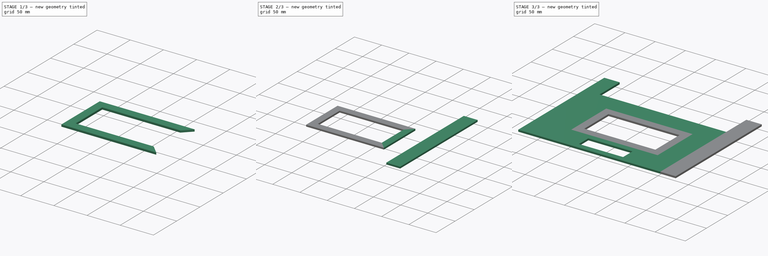
[diagram: build sequence overview — one tinted view per stage of 3, left to right]
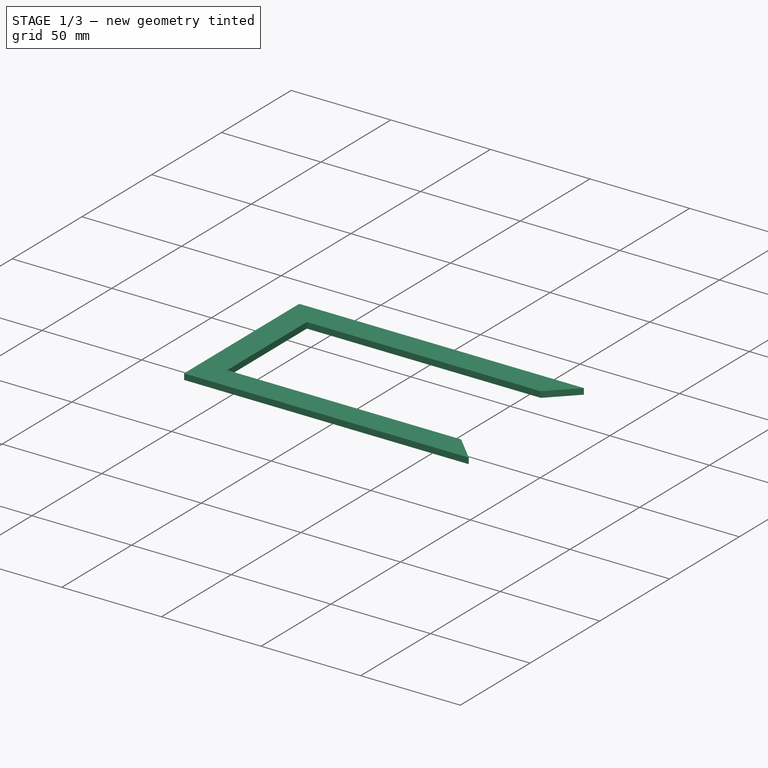
[diagram: stage 1 of 3 — iso view after this stage's code; geometry added in this stage tinted green]
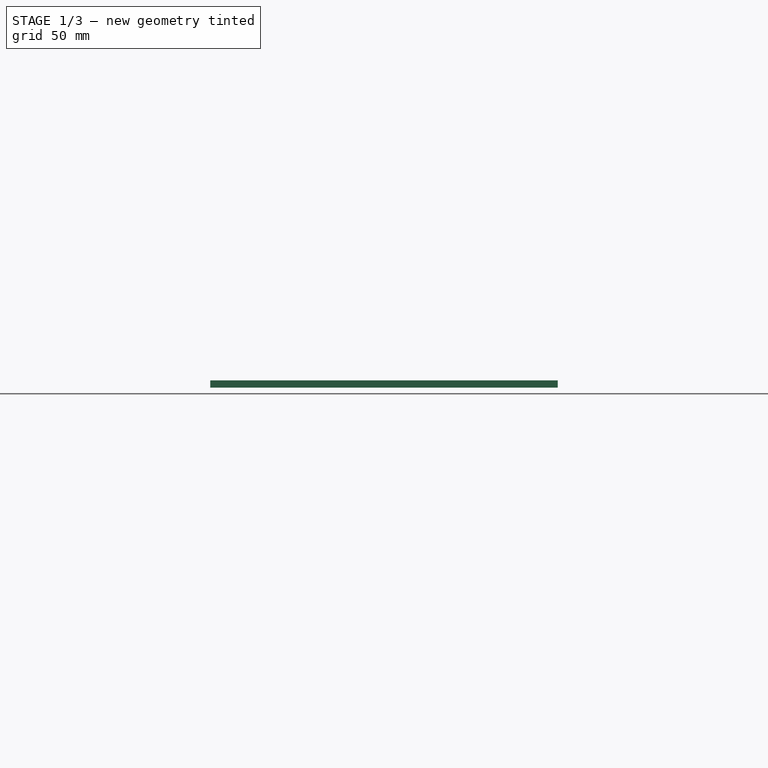
[diagram: stage 1 of 3 — front view after this stage's code; geometry added in this stage tinted green]
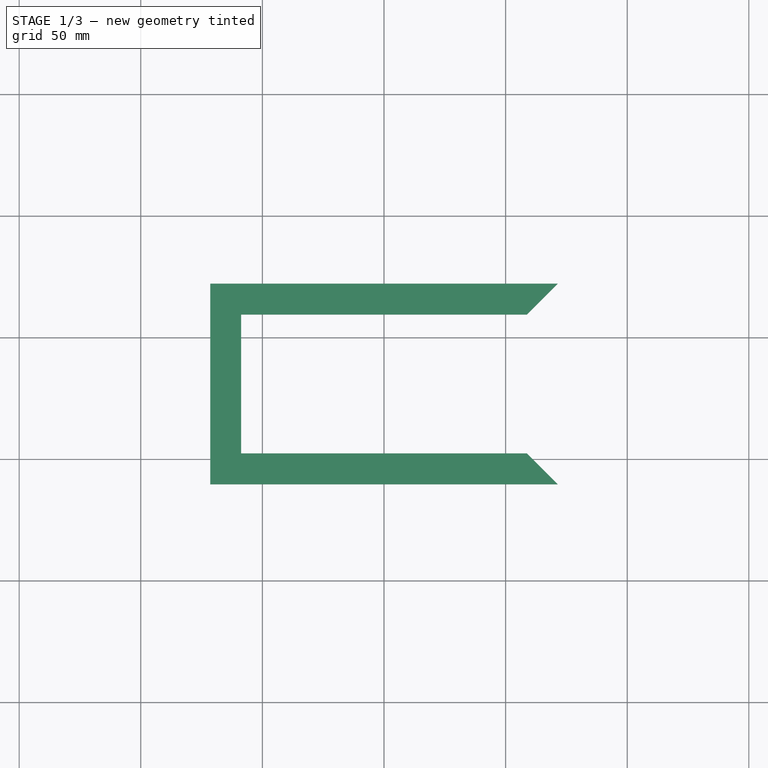
[diagram: stage 1 of 3 — top view after this stage's code; geometry added in this stage tinted green]
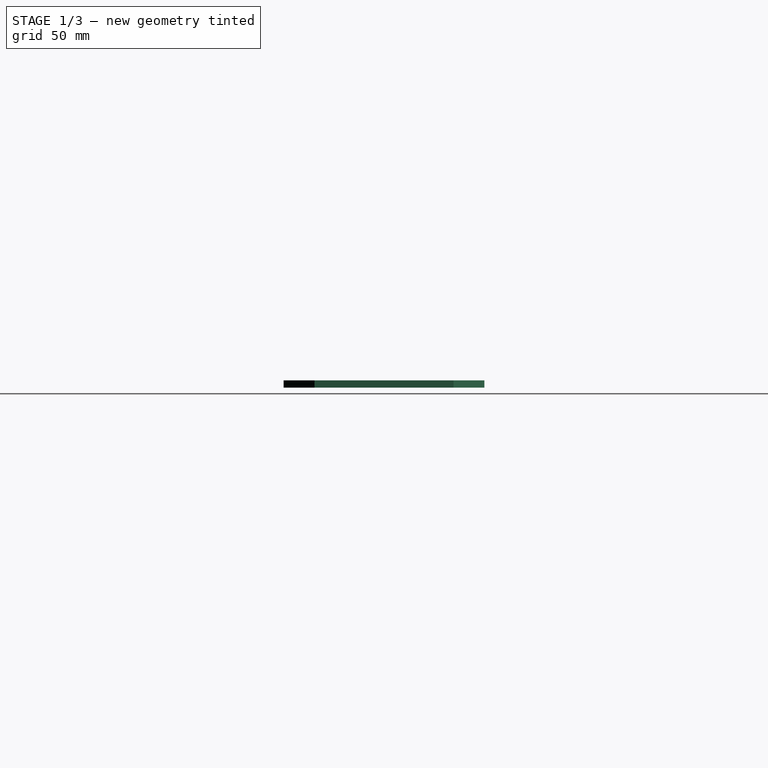
[diagram: stage 1 of 3 — right view after this stage's code; geometry added in this stage tinted green]
FCSTD DOCUMENT  (FreeCAD 0.22R38317 (Git))
Label: Cutout
License: All rights reserved
LicenseURL: https://en.wikipedia.org/wiki/All_rights_reserved
objects: TechDraw::DrawViewDimension×14, Sketcher::SketchObject×10, PartDesign::Body×9, PartDesign::Pad×8, TechDraw::DrawSVGTemplate×1, TechDraw::DrawProjGroupItem×1, TechDraw::DrawPage×1
note: 61 computed .brp shape members not serialized (recipe doc carries the construction recipe); baked Part::Feature solids carry a one-line shape summary decoded from their .brp

FEATURE [PartDesign::Body] Body006  label="inner-right"
  AllowCompound = false
  Group = -> [Sketch013,Pad005]
  Origin = -> Origin006
  Tip = -> Pad005
FEATURE [PartDesign::Pad] Pad006
  Direction = (0,0,1)
  Length = 3
  Length2 = 10
  Profile = -> Sketch012
  ReferenceAxis = -> Sketch012 [N_Axis]
  Refine = true
  Suppressed = false
  Type = 0
FEATURE [PartDesign::Body] Body007  label="inner-left"
  AllowCompound = false
  Group = -> [Sketch012,Pad006]
  Origin = -> Origin007
  Tip = -> Pad006
FEATURE [PartDesign::Pad] Pad007
  Direction = (0,0,1)
  Length = 3
  Length2 = 10
  Profile = -> Sketch011
  ReferenceAxis = -> Sketch011 [N_Axis]
  Refine = true
  Suppressed = false
  Type = 0
FEATURE [PartDesign::Body] Body008  label="inner-bottom"
  AllowCompound = false
  Group = -> [Sketch011,Pad007]
  Origin = -> Origin008
  Tip = -> Pad007
FEATURE [PartDesign::Pad] Pad008
  Direction = (0,0,1)
  Length = 3
  Length2 = 10
  Profile = -> Sketch010
  ReferenceAxis = -> Sketch010 [N_Axis]
  Refine = true
  Suppressed = false
  Type = 0
FEATURE [PartDesign::Body] Body009  label="inner-top"
  AllowCompound = false
  Group = -> [Sketch010,Pad008]
  Origin = -> Origin009
  Tip = -> Pad008
FEATURE [TechDraw::DrawSVGTemplate] Template
  EditableTexts = approval_person=B. Hecate; creator=A. Nemesis; date_of_issue=7/23/24; document_type=Assembly Drawing; general_tolerances=ISO 2768-m; identification_number=DN; language_code=EN; part_material=Stainless steel Mat.No. 1.4301; revision_index=AAA; sheet_number=1 / 1; sheet_scale=1 : 1; title=Cutout
  Height = 420
  Orientation = 1
  Template = /snap/freecad/1085/usr/share/Mod/TechDraw/Templates/A2_Landscape_ISO5457_minimal.svg
  Width = 594
FEATURE [TechDraw::DrawProjGroupItem] View
  CoarseView = false
  Direction = (0,0,1)
  Focus = 100
  HardHidden = false
  IsoCount = 0
  IsoHidden = false
  IsoVisible = false
  LockPosition = false
  Perspective = false
  Rotation = 0
  RotationVector = (1,0,0)
  ScaleType = 0
  ScrubCount = 1
  SeamHidden = false
  SeamVisible = false
  SmoothHidden = false
  SmoothVisible = true
  Source = -> [Body001,Body009,Body008,Body007,Body006,Body004,Body005,Body002]
  Type = 0
  X = 205.236
  XDirection = (1,0,0)
  Y = 269.663
FEATURE [TechDraw::DrawViewDimension] Dimension
  AngleOverride = false
  Arbitrary = false
  ArbitraryTolerances = false
  BoxCorners = (2) [(-130.175,-101.6,0),(130.175,101.6,0)]
  EqualTolerance = true
  ExtensionAngle = 0
  FormatSpec = %.2w
  FormatSpecOverTolerance = %+.2w
  FormatSpecUnderTolerance = %+.2w
  Inverted = false
  LineAngle = 0
  LockPosition = false
  MeasureType = 1
  OverTolerance = 0
  References2D = -> [View]
  Rotation = 0
  ScaleType = 0
  TheoreticalExact = false
  Type = 1
  UnderTolerance = 0
  X = 0
  Y = -136.637
FEATURE [TechDraw::DrawViewDimension] Dimension001
  AngleOverride = false
  Arbitrary = false
  ArbitraryTolerances = false
  BoxCorners = (2) [(-130.175,-101.6,0),(130.175,101.6,0)]
  EqualTolerance = true
  ExtensionAngle = 0
  FormatSpec = %.2w
  FormatSpecOverTolerance = %+.2w
  FormatSpecUnderTolerance = %+.2w
  Inverted = false
  LineAngle = 0
  LockPosition = false
  MeasureType = 1
  OverTolerance = 0
  References2D = -> [View]
  Rotation = 0
  ScaleType = 0
  TheoreticalExact = false
  Type = 1
  UnderTolerance = 0
  X = 0
  Y = 75.108
FEATURE [TechDraw::DrawViewDimension] Dimension002
  AngleOverride = false
  Arbitrary = false
  ArbitraryTolerances = false
  BoxCorners = (2) [(-130.175,-101.6,0),(130.175,101.6,0)]
  EqualTolerance = true
  ExtensionAngle = 0
  FormatSpec = %.2w
  FormatSpecOverTolerance = %+.2w
  FormatSpecUnderTolerance = %+.2w
  Inverted = false
  LineAngle = 0
  LockPosition = false
  MeasureType = 1
  OverTolerance = 0
  References2D = -> [View]
  Rotation = 0
  ScaleType = 0
  TheoreticalExact = false
  Type = 2
  UnderTolerance = 0
  X = 163.537
  Y = -11.5795
FEATURE [TechDraw::DrawViewDimension] Dimension003
  AngleOverride = false
  Arbitrary = false
  ArbitraryTolerances = false
  BoxCorners = (2) [(-130.175,-101.6,0),(130.175,101.6,0)]
  EqualTolerance = true
  ExtensionAngle = 0
  FormatSpec = %.4w
  FormatSpecOverTolerance = %+.2w
  FormatSpecUnderTolerance = %+.2w
  Inverted = false
  LineAngle = 0
  LockPosition = false
  MeasureType = 1
  OverTolerance = 0
  References2D = -> [View]
  Rotation = 0
  ScaleType = 0
  TheoreticalExact = false
  Type = 1
  UnderTolerance = 0
  X = 0
  Y = -81.2138
FEATURE [TechDraw::DrawViewDimension] Dimension004
  AngleOverride = false
  Arbitrary = false
  ArbitraryTolerances = false
  BoxCorners = (2) [(-130.175,-101.6,0),(130.175,101.6,0)]
  EqualTolerance = true
  ExtensionAngle = 0
  FormatSpec = %.4w
  FormatSpecOverTolerance = %+.2w
  FormatSpecUnderTolerance = %+.2w
  Inverted = false
  LineAngle = 0
  LockPosition = false
  MeasureType = 1
  OverTolerance = 0
  References2D = -> [View]
  Rotation = 0
  ScaleType = 0
  TheoreticalExact = false
  Type = 2
  UnderTolerance = 0
  X = 52.8678
  Y = -80.9625
FEATURE [TechDraw::DrawViewDimension] Dimension005
  AngleOverride = false
  Arbitrary = false
  ArbitraryTolerances = false
  BoxCorners = (2) [(-130.175,-101.6,0),(130.175,101.6,0)]
  EqualTolerance = true
  ExtensionAngle = 0
  FormatSpec = %.4w
  FormatSpecOverTolerance = %+.2w
  FormatSpecUnderTolerance = %+.2w
  Inverted = false
  LineAngle = 0
  LockPosition = false
  MeasureType = 1
  OverTolerance = 0
  References2D = -> [View]
  Rotation = 0
  ScaleType = 0
  TheoreticalExact = false
  Type = 2
  UnderTolerance = 0
  X = -0.89738
  Y = 42.9006
FEATURE [TechDraw::DrawViewDimension] Dimension006
  AngleOverride = false
  Arbitrary = false
  ArbitraryTolerances = false
  BoxCorners = (2) [(-130.175,-101.6,0),(130.175,101.6,0)]
  EqualTolerance = true
  ExtensionAngle = 0
  FormatSpec = %.4w
  FormatSpecOverTolerance = %+.2w
  FormatSpecUnderTolerance = %+.2w
  Inverted = false
  LineAngle = 0
  LockPosition = false
  MeasureType = 1
  OverTolerance = 0
  References2D = -> [View]
  Rotation = 0
  ScaleType = 0
  TheoreticalExact = false
  Type = 2
  UnderTolerance = 0
  X = -154.537
  Y = 26.9875
FEATURE [TechDraw::DrawViewDimension] Dimension007
  AngleOverride = false
  Arbitrary = false
  ArbitraryTolerances = false
  BoxCorners = (2) [(-130.175,-101.6,0),(130.175,101.6,0)]
  EqualTolerance = true
  ExtensionAngle = 0
  FormatSpec = %.2w
  FormatSpecOverTolerance = %+.2w
  FormatSpecUnderTolerance = %+.2w
  Inverted = false
  LineAngle = 0
  LockPosition = false
  MeasureType = 1
  OverTolerance = 0
  References2D = -> [View]
  Rotation = 0
  ScaleType = 0
  TheoreticalExact = false
  Type = 2
  UnderTolerance = 0
  X = 92.4737
  Y = -19.05
FEATURE [TechDraw::DrawViewDimension] Dimension008
  AngleOverride = false
  Arbitrary = false
  ArbitraryTolerances = false
  BoxCorners = (2) [(-130.175,-101.6,0),(130.175,101.6,0)]
  EqualTolerance = true
  ExtensionAngle = 0
  FormatSpec = %.2w
  FormatSpecOverTolerance = %+.2w
  FormatSpecUnderTolerance = %+.2w
  Inverted = false
  LineAngle = 0
  LockPosition = false
  MeasureType = 1
  OverTolerance = 0
  References2D = -> [View]
  Rotation = 0
  ScaleType = 0
  TheoreticalExact = false
  Type = 2
  UnderTolerance = 0
  X = 78.3422
  Y = -19.05
FEATURE [TechDraw::DrawViewDimension] Dimension009
  AngleOverride = false
  Arbitrary = false
  ArbitraryTolerances = false
  BoxCorners = (2) [(-130.175,-101.6,0),(130.175,101.6,0)]
  EqualTolerance = true
  ExtensionAngle = 0
  FormatSpec = %.4w
  FormatSpecOverTolerance = %+.2w
  FormatSpecUnderTolerance = %+.2w
  Inverted = false
  LineAngle = 0
  LockPosition = false
  MeasureType = 1
  OverTolerance = 0
  References2D = -> [View]
  Rotation = 0
  ScaleType = 0
  TheoreticalExact = false
  Type = 1
  UnderTolerance = 0
  X = 0
  Y = -51.8442
FEATURE [TechDraw::DrawViewDimension] Dimension010
  AngleOverride = false
  Arbitrary = false
  ArbitraryTolerances = false
  BoxCorners = (2) [(-130.175,-101.6,0),(130.175,101.6,0)]
  EqualTolerance = true
  ExtensionAngle = 0
  FormatSpec = %.4w
  FormatSpecOverTolerance = %+.2w
  FormatSpecUnderTolerance = %+.2w
  Inverted = false
  LineAngle = 0
  LockPosition = false
  MeasureType = 1
  OverTolerance = 0
  References2D = -> [View]
  Rotation = 0
  ScaleType = 0
  TheoreticalExact = false
  Type = 1
  UnderTolerance = 0
  X = 0
  Y = -63.6868
FEATURE [TechDraw::DrawViewDimension] Dimension011
  AngleOverride = false
  Arbitrary = false
  ArbitraryTolerances = false
  BoxCorners = (2) [(-130.175,-101.6,0),(130.175,101.6,0)]
  EqualTolerance = true
  ExtensionAngle = 0
  FormatSpec = %.2w
  FormatSpecOverTolerance = %+.2w
  FormatSpecUnderTolerance = %+.2w
  Inverted = false
  LineAngle = 0
  LockPosition = false
  MeasureType = 1
  OverTolerance = 0
  References2D = -> [View]
  Rotation = 0
  ScaleType = 0
  TheoreticalExact = false
  Type = 1
  UnderTolerance = 0
  X = -117.475
  Y = 116.202
FEATURE [TechDraw::DrawViewDimension] Dimension012
  AngleOverride = false
  Arbitrary = false
  ArbitraryTolerances = false
  BoxCorners = (2) [(-130.175,-101.6,0),(130.175,101.6,0)]
  EqualTolerance = true
  ExtensionAngle = 0
  FormatSpec = %.2w
  FormatSpecOverTolerance = %+.2w
  FormatSpecUnderTolerance = %+.2w
  Inverted = false
  LineAngle = 0
  LockPosition = false
  MeasureType = 1
  OverTolerance = 0
  References2D = -> [View]
  Rotation = 0
  ScaleType = 0
  TheoreticalExact = false
  Type = 1
  UnderTolerance = 0
  X = 117.475
  Y = 116.202
FEATURE [TechDraw::DrawViewDimension] Dimension013
  AngleOverride = false
  Arbitrary = false
  ArbitraryTolerances = false
  BoxCorners = (2) [(-130.175,-101.6,0),(130.175,101.6,0)]
  EqualTolerance = true
  ExtensionAngle = 0
  FormatSpec = %.4w
  FormatSpecOverTolerance = %+.2w
  FormatSpecUnderTolerance = %+.2w
  Inverted = false
  LineAngle = 0
  LockPosition = false
  MeasureType = 1
  OverTolerance = 0
  References2D = -> [View]
  Rotation = 0
  ScaleType = 0
  TheoreticalExact = false
  Type = 2
  UnderTolerance = 0
  X = -154.537
  Y = -96.8375
FEATURE [TechDraw::DrawPage] Page
  KeepUpdated = true
  NextBalloonIndex = 1
  ProjectionType = 0
  Template = -> Template
  Views = -> [View,Dimension,Dimension001,Dimension002,Dimension003,Dimension004,Dimension005,Dimension006,Dimension007,Dimension008,Dimension009,Dimension010,Dimension011,Dimension012,Dimension013]
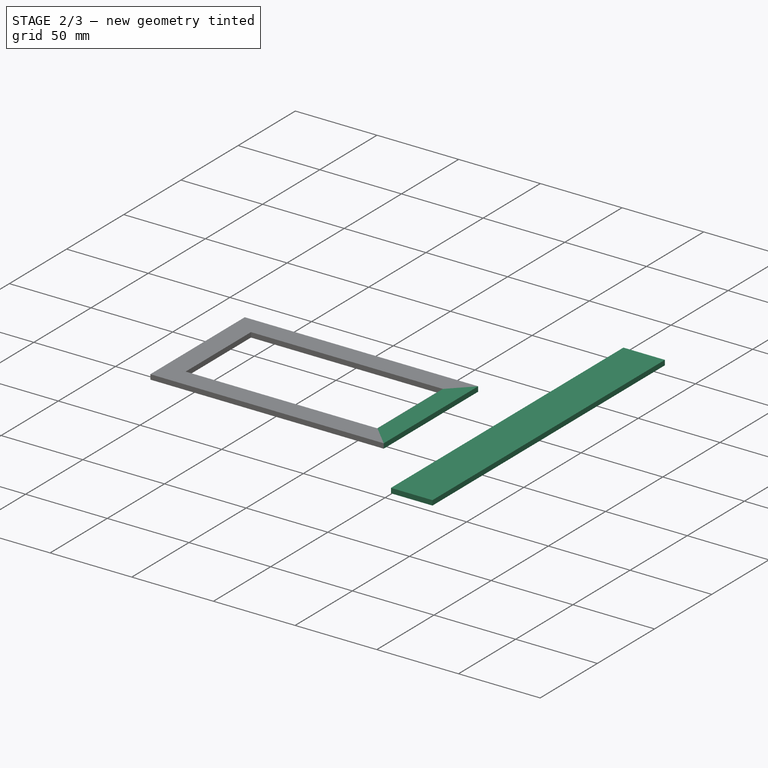
[diagram: stage 2 of 3 — iso view after this stage's code; geometry added in this stage tinted green]
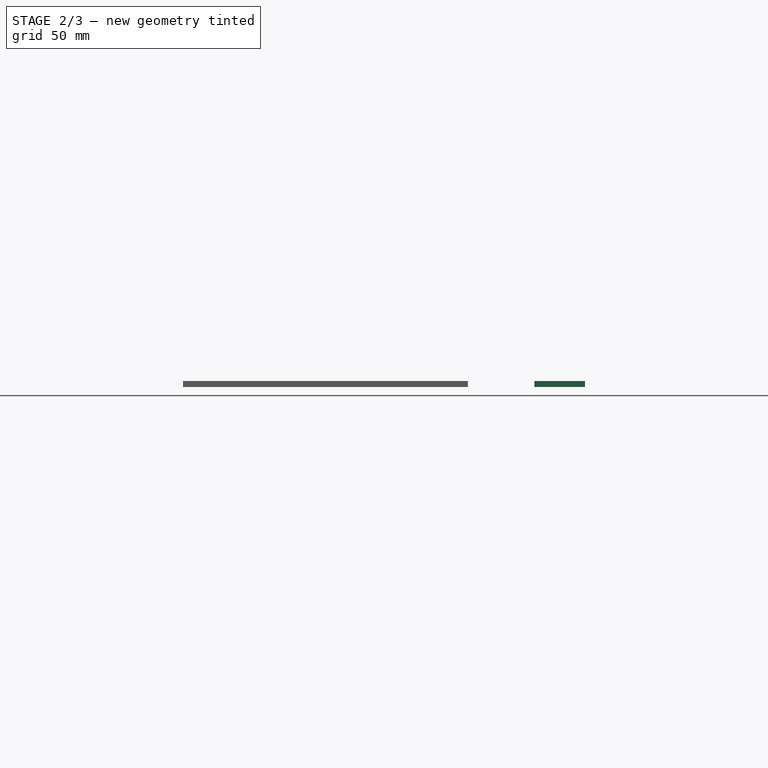
[diagram: stage 2 of 3 — front view after this stage's code; geometry added in this stage tinted green]
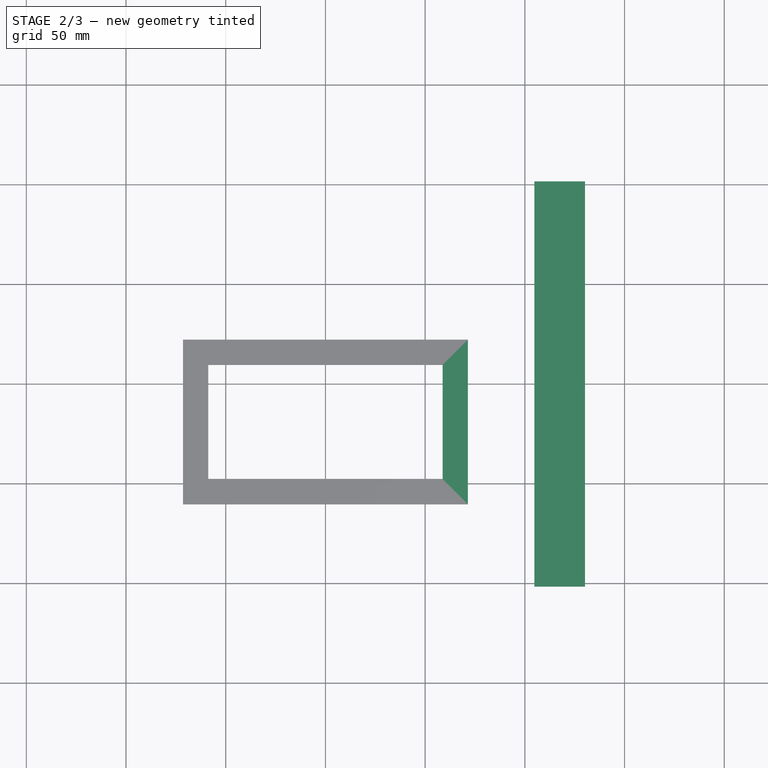
[diagram: stage 2 of 3 — top view after this stage's code; geometry added in this stage tinted green]
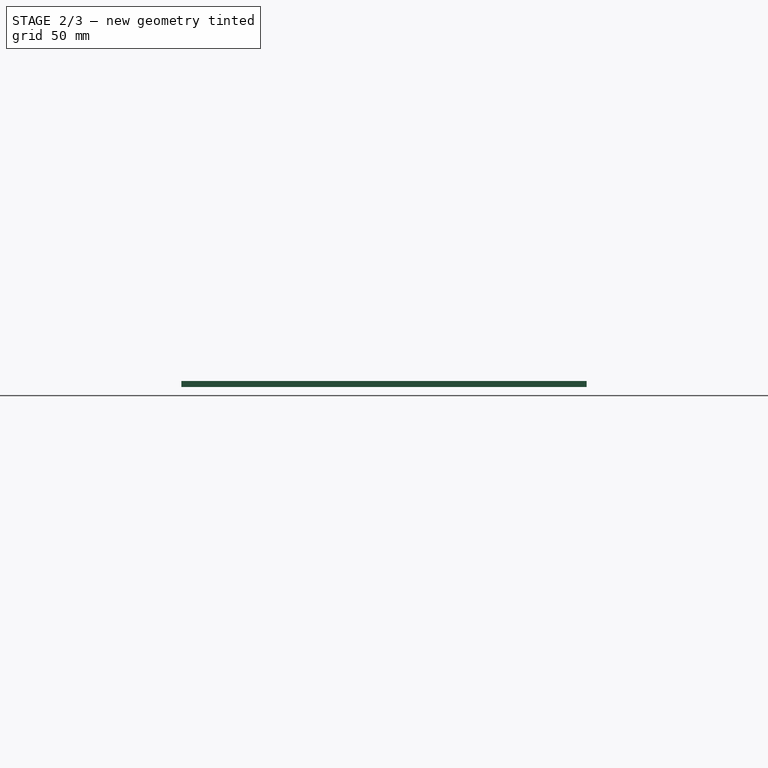
[diagram: stage 2 of 3 — right view after this stage's code; geometry added in this stage tinted green]
FEATURE [Sketcher::SketchObject] Sketch008
  AttachmentSupport = -> [XY_Plane005]
  FullyConstrained = true
  MapMode = 5
  sketch-geometry (23):
    g0: LineSegment StartX=130.175 StartY=-101.6 StartZ=0 EndX=130.175 EndY=101.6 EndZ=0
    g1: LineSegment StartX=-130.175 StartY=-101.6 StartZ=0 EndX=-130.175 EndY=101.6 EndZ=0
    g2: LineSegment StartX=104.775 StartY=101.6 StartZ=0 EndX=130.175 EndY=101.6 EndZ=0
    g3: LineSegment StartX=-130.175 StartY=101.6 StartZ=0 EndX=-104.775 EndY=101.6 EndZ=0
    g4: LineSegment StartX=-130.175 StartY=-101.6 StartZ=0 EndX=-104.775 EndY=-101.6 EndZ=0
    g5: LineSegment StartX=-104.775 StartY=-101.6 StartZ=0 EndX=104.775 EndY=-101.6 EndZ=0
    g6: LineSegment StartX=104.775 StartY=-101.6 StartZ=0 EndX=130.175 EndY=-101.6 EndZ=0
    g7: LineSegment StartX=-104.775 StartY=53.975 StartZ=0 EndX=104.775 EndY=53.975 EndZ=0
    g8: LineSegment StartX=-104.775 StartY=31.75 StartZ=0 EndX=104.775 EndY=31.75 EndZ=0
    g9: LineSegment StartX=-71.4375 StartY=22.225 StartZ=0 EndX=-71.4375 EndY=-60.325 EndZ=0
    g10: LineSegment StartX=-71.4375 StartY=-60.325 StartZ=0 EndX=71.4375 EndY=-60.325 EndZ=0
    g11: LineSegment StartX=71.4375 StartY=-60.325 StartZ=0 EndX=71.4375 EndY=22.225 EndZ=0
    g12: LineSegment StartX=71.4375 StartY=22.225 StartZ=0 EndX=-71.4375 EndY=22.225 EndZ=0
    g13: LineSegment StartX=-36.5125 StartY=-69.85 StartZ=0 EndX=-36.5125 EndY=-92.075 EndZ=0
    g14: LineSegment StartX=-36.5125 StartY=-92.075 StartZ=0 EndX=36.5125 EndY=-92.075 EndZ=0
    g15: LineSegment StartX=36.5125 StartY=-92.075 StartZ=0 EndX=36.5125 EndY=-69.85 EndZ=0
    g16: LineSegment StartX=36.5125 StartY=-69.85 StartZ=0 EndX=-36.5125 EndY=-69.85 EndZ=0
    g17: LineSegment StartX=104.775 StartY=-101.6 StartZ=0 EndX=104.775 EndY=101.6 EndZ=0
    g18: LineSegment StartX=-104.775 StartY=-101.6 StartZ=0 EndX=-104.775 EndY=101.6 EndZ=0
    g19: LineSegment StartX=-58.7375 StartY=9.525 StartZ=0 EndX=-58.7375 EndY=-47.625 EndZ=0
    g20: LineSegment StartX=-58.7375 StartY=-47.625 StartZ=0 EndX=58.7375 EndY=-47.625 EndZ=0
    g21: LineSegment StartX=58.7375 StartY=-47.625 StartZ=0 EndX=58.7375 EndY=9.525 EndZ=0
    g22: LineSegment StartX=58.7375 StartY=9.525 StartZ=0 EndX=-58.7375 EndY=9.525 EndZ=0
  constraints (64):
    c: Distance(g0) = 203.2
    c: Vertical(g0)
    c: Distance(g1) = 203.2
    c: Vertical(g1)
    c: Distance(g1,g0) = 260.35
    c: Symmetric(g1,g0,g-2)
    c: Coincident(g2,g0)
    c: Horizontal(g2)
    c: DistanceX(g2,g2) = 25.4
    c: Coincident(g3,g1)
    c: DistanceX(g3,g3) = 25.4
    c: Horizontal(g3)
    c: DistanceY(g0,g-1) = 101.6
    c: Coincident(g4,g1)
    c: Coincident(g6,g0)
    c: DistanceY(g7,g3) = 47.625
    c: DistanceY(g8,g7) = 22.225
    c: Coincident(g9,g10)
    c: Coincident(g10,g11)
    c: Coincident(g11,g12)
    c: Coincident(g12,g9)
    c: Vertical(g9)
    c: Vertical(g11)
    c: Horizontal(g10)
    c: Coincident(g13,g14)
    c: Coincident(g14,g15)
    c: Coincident(g15,g16)
    c: Coincident(g16,g13)
    c: Vertical(g13)
    c: Vertical(g15)
    c: Horizontal(g14)
    c: Symmetric(g9,g11,g-2)
    c: Symmetric(g13,g15,g-2)
    c: DistanceX(g12,g12) = 142.875
    c: DistanceY(g9,g8) = 9.525
    c: DistanceY(g9,g9) = 82.55
    c: DistanceY(g13,g9) = 9.525
    c: DistanceX(g16,g16) = 73.025
    c: DistanceY(g13,g13) = 22.225
    c: Coincident(g17,g5)
    c: Coincident(g17,g2)
    c: Vertical(g17)
    c: Coincident(g18,g4)
    c: Coincident(g18,g3)
    c: Vertical(g18)
    c: DistanceY(g18,g18) = 203.2
    c: Symmetric(g7,g7,g-2)
    c: DistanceX(g7,g7) = 209.55
    c: Equal(g8,g7)
    c: Symmetric(g8,g8,g-2)
    c: Coincident(g5,g6)
    c: Horizontal(g5)
    c: Coincident(g5,g4)
    c: Coincident(g19,g20)
    c: Coincident(g20,g21)
    c: Coincident(g21,g22)
    c: Coincident(g22,g19)
    c: Vertical(g19)
    c: Vertical(g21)
    c: Horizontal(g20)
    c: DistanceX(g9,g19) = 12.7
    c: Symmetric(g19,g21,g-2)
    c: DistanceY(g19,g9) = 12.7
    c: DistanceY(g9,g19) = 12.7
FEATURE [PartDesign::Body] Body004  label="side-L"
  AllowCompound = false
  Group = -> [Sketch007,Pad003,Sketch008]
  Origin = -> Origin004
  Tip = -> Pad003
FEATURE [Sketcher::SketchObject] Sketch009
  AttachmentSupport = -> [XY_Plane006]
  FullyConstrained = true
  MapMode = 5
  sketch-geometry (4):
    g0: LineSegment StartX=130.175 StartY=-101.6 StartZ=0 EndX=130.175 EndY=101.6 EndZ=0
    g1: LineSegment StartX=104.775 StartY=101.6 StartZ=0 EndX=130.175 EndY=101.6 EndZ=0
    g2: LineSegment StartX=104.775 StartY=-101.6 StartZ=0 EndX=130.175 EndY=-101.6 EndZ=0
    g3: LineSegment StartX=104.775 StartY=-101.6 StartZ=0 EndX=104.775 EndY=101.6 EndZ=0
  constraints (12):
    c: Distance(g0) = 203.2
    c: Vertical(g0)
    c: Coincident(g1,g0)
    c: Horizontal(g1)
    c: DistanceX(g1,g1) = 25.4
    c: DistanceY(g0,g-1) = 101.6
    c: Coincident(g2,g0)
    c: Coincident(g3,g1)
    c: Vertical(g3)
    c: DistanceX(g-1,g1) = 104.775
    c: Equal(g3,g0)
    c: Coincident(g2,g3)
FEATURE [PartDesign::Pad] Pad004
  Direction = (0,0,1)
  Length = 3
  Length2 = 10
  Profile = -> Sketch009
  ReferenceAxis = -> Sketch009 [N_Axis]
  Refine = true
  Suppressed = false
  Type = 0
FEATURE [PartDesign::Body] Body005  label="side-R"
  AllowCompound = false
  Group = -> [Sketch009,Pad004]
  Origin = -> Origin005
  Tip = -> Pad004
FEATURE [Sketcher::SketchObject] Sketch010
  AttachmentSupport = -> [XY_Plane013]
  FullyConstrained = true
  MapMode = 5
  sketch-geometry (4):
    g0: LineSegment StartX=-58.7375 StartY=9.525 StartZ=0 EndX=58.7375 EndY=9.525 EndZ=0
    g1: LineSegment StartX=58.7375 StartY=9.525 StartZ=0 EndX=71.4375 EndY=22.225 EndZ=0
    g2: LineSegment StartX=71.4375 StartY=22.225 StartZ=0 EndX=-71.4375 EndY=22.225 EndZ=0
    g3: LineSegment StartX=-71.4375 StartY=22.225 StartZ=0 EndX=-58.7375 EndY=9.525 EndZ=0
  constraints (10):
    c: Coincident(g1,g0)
    c: Coincident(g2,g1)
    c: Coincident(g3,g2)
    c: Coincident(g3,g0)
    c: Symmetric(g2,g1,g-2)
    c: Symmetric(g0,g0,g-2)
    c: DistanceX(g2,g1) = 142.875
    c: DistanceY(g0,g2) = 12.7
    c: DistanceY(g-1,g0) = 9.525
    c: DistanceX(g0,g0) = 117.475
FEATURE [Sketcher::SketchObject] Sketch011
  AttachmentSupport = -> [XY_Plane012]
  FullyConstrained = true
  MapMode = 5
  sketch-geometry (4):
    g0: LineSegment StartX=-71.4375 StartY=-60.325 StartZ=0 EndX=-58.7375 EndY=-47.625 EndZ=0
    g1: LineSegment StartX=-58.7375 StartY=-47.625 StartZ=0 EndX=58.7375 EndY=-47.625 EndZ=0
    g2: LineSegment StartX=58.7375 StartY=-47.625 StartZ=0 EndX=71.4375 EndY=-60.325 EndZ=0
    g3: LineSegment StartX=71.4375 StartY=-60.325 StartZ=0 EndX=-71.4375 EndY=-60.325 EndZ=0
  constraints (10):
    c: Coincident(g1,g0)
    c: Coincident(g2,g1)
    c: Coincident(g3,g2)
    c: Coincident(g3,g0)
    c: Symmetric(g0,g1,g-2)
    c: DistanceY(g0,g0) = 12.7
    c: DistanceY(g0,g-1) = 47.625
    c: DistanceX(g0,g1) = 117.475
    c: Symmetric(g0,g2,g-2)
    c: DistanceX(g0,g2) = 142.875
FEATURE [Sketcher::SketchObject] Sketch012
  AttachmentSupport = -> [XY_Plane011]
  FullyConstrained = true
  MapMode = 5
  sketch-geometry (4):
    g0: LineSegment StartX=-71.4375 StartY=-60.325 StartZ=0 EndX=-58.7375 EndY=-47.625 EndZ=0
    g1: LineSegment StartX=-58.7375 StartY=-47.625 StartZ=0 EndX=-58.7375 EndY=9.525 EndZ=0
    g2: LineSegment StartX=-58.7375 StartY=9.525 StartZ=0 EndX=-71.4375 EndY=22.225 EndZ=0
    g3: LineSegment StartX=-71.4375 StartY=22.225 StartZ=0 EndX=-71.4375 EndY=-60.325 EndZ=0
  constraints (12):
    c: Coincident(g1,g0)
    c: Vertical(g1)
    c: Coincident(g2,g1)
    c: Coincident(g3,g2)
    c: Coincident(g3,g0)
    c: Vertical(g3)
    c: DistanceY(g1,g1) = 57.15
    c: DistanceY(g3,g3) = 82.55
    c: DistanceX(g2,g2) = 12.7
    c: DistanceX(g1,g-1) = 58.7375
    c: DistanceY(g-1,g1) = 9.525
    c: DistanceY(g1,g2) = 12.7
FEATURE [Sketcher::SketchObject] Sketch013
  AttachmentSupport = -> [XY_Plane010]
  FullyConstrained = true
  MapMode = 5
  sketch-geometry (4):
    g0: LineSegment StartX=58.7375 StartY=9.525 StartZ=0 EndX=71.4375 EndY=22.225 EndZ=0
    g1: LineSegment StartX=71.4375 StartY=22.225 StartZ=0 EndX=71.4375 EndY=-60.325 EndZ=0
    g2: LineSegment StartX=71.4375 StartY=-60.325 StartZ=0 EndX=58.7375 EndY=-47.625 EndZ=0
    g3: LineSegment StartX=58.7375 StartY=-47.625 StartZ=0 EndX=58.7375 EndY=9.525 EndZ=0
  constraints (12):
    c: Coincident(g1,g0)
    c: Vertical(g1)
    c: Coincident(g2,g1)
    c: Coincident(g3,g2)
    c: Coincident(g3,g0)
    c: Vertical(g3)
    c: DistanceX(g-1,g0) = 58.7375
    c: DistanceX(g0,g0) = 12.7
    c: DistanceY(g1,g1) = 82.55
    c: DistanceY(g3,g3) = 57.15
    c: DistanceY(g0,g0) = 12.7
    c: DistanceY(g-1,g0) = 9.525
FEATURE [PartDesign::Pad] Pad005
  Direction = (0,0,1)
  Length = 3
  Length2 = 10
  Profile = -> Sketch013
  ReferenceAxis = -> Sketch013 [N_Axis]
  Refine = true
  Suppressed = false
  Type = 0
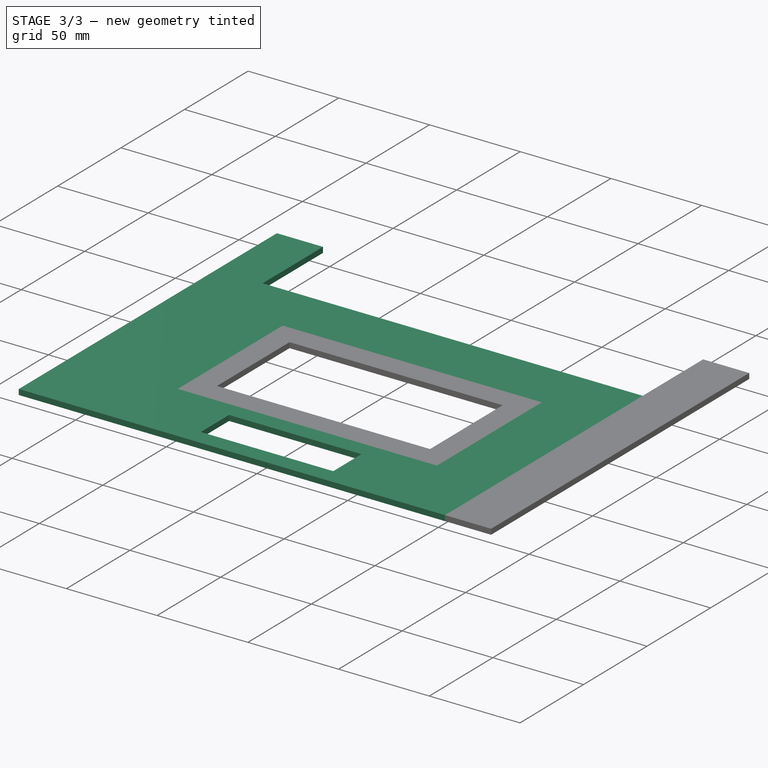
[diagram: stage 3 of 3 — iso view after this stage's code; geometry added in this stage tinted green]
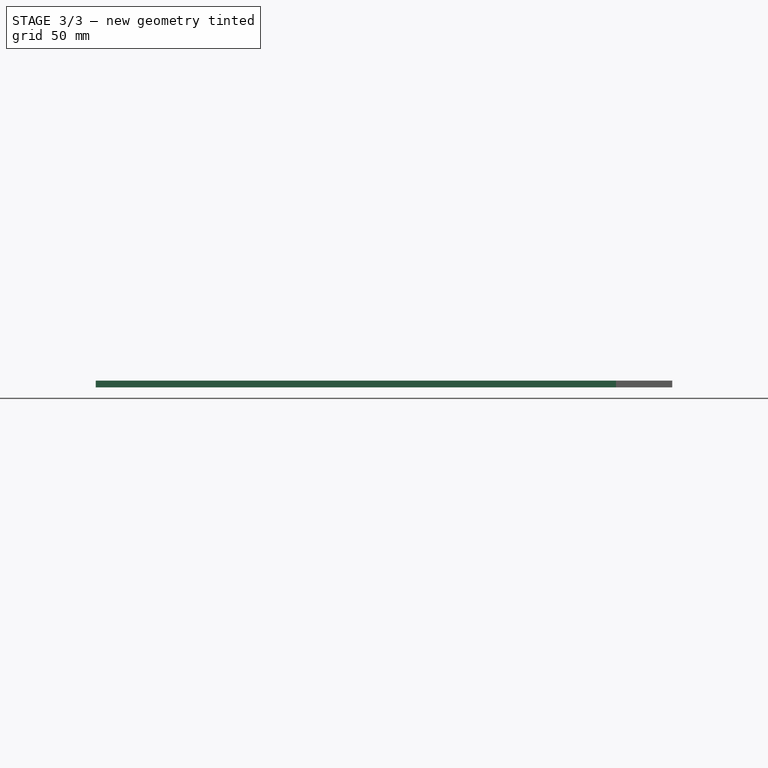
[diagram: stage 3 of 3 — front view after this stage's code; geometry added in this stage tinted green]
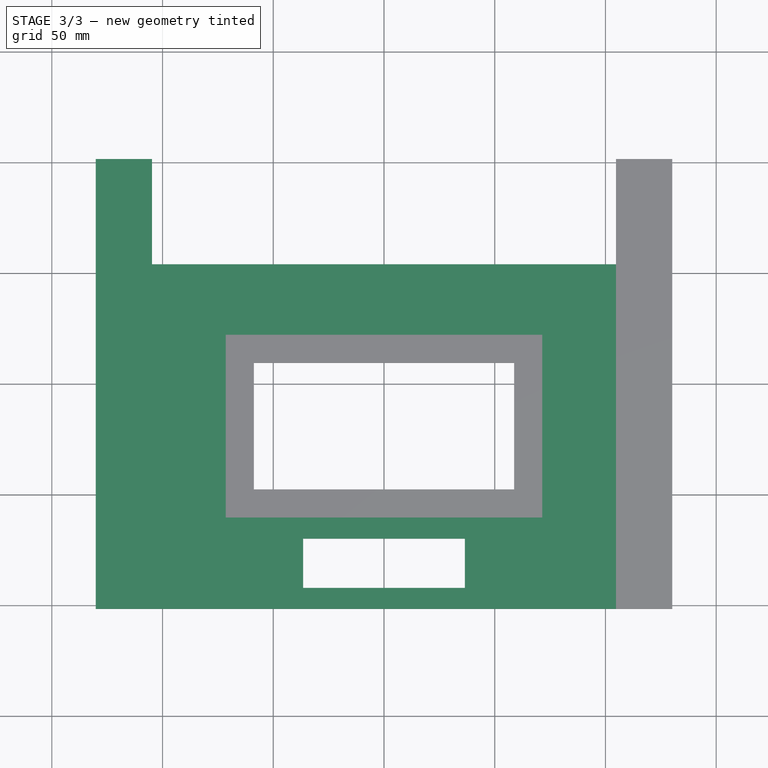
[diagram: stage 3 of 3 — top view after this stage's code; geometry added in this stage tinted green]
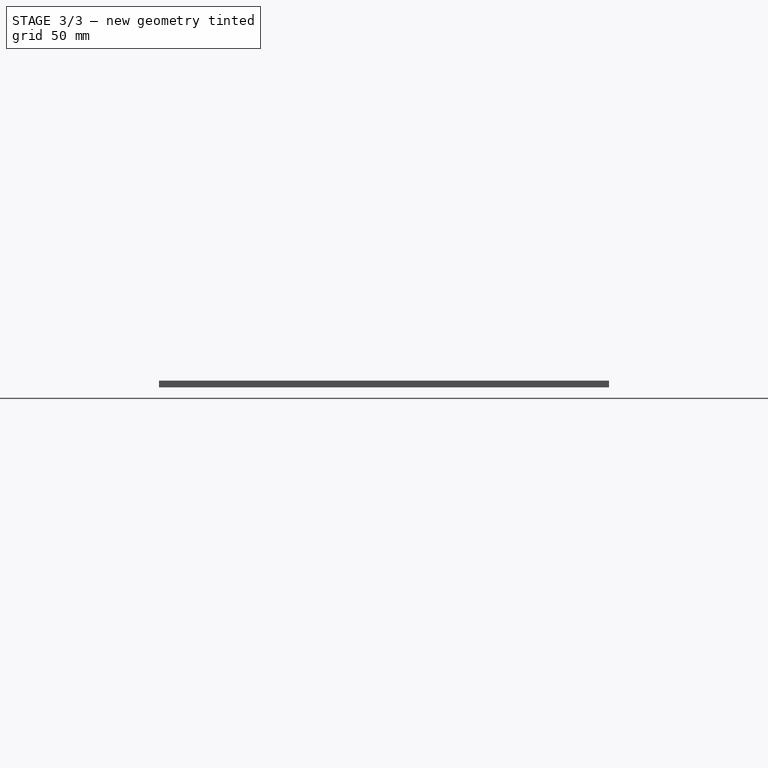
[diagram: stage 3 of 3 — right view after this stage's code; geometry added in this stage tinted green]
FEATURE [Sketcher::SketchObject] Sketch
  AttachmentSupport = -> [XY_Plane]
  FullyConstrained = true
  MapMode = 5
  sketch-geometry (23):
    g0: LineSegment StartX=130.175 StartY=-101.6 StartZ=0 EndX=130.175 EndY=101.6 EndZ=0
    g1: LineSegment StartX=-130.175 StartY=-101.6 StartZ=0 EndX=-130.175 EndY=101.6 EndZ=0
    g2: LineSegment StartX=104.775 StartY=101.6 StartZ=0 EndX=130.175 EndY=101.6 EndZ=0
    g3: LineSegment StartX=-130.175 StartY=101.6 StartZ=0 EndX=-104.775 EndY=101.6 EndZ=0
    g4: LineSegment StartX=-130.175 StartY=-101.6 StartZ=0 EndX=-104.775 EndY=-101.6 EndZ=0
    g5: LineSegment StartX=-104.775 StartY=-101.6 StartZ=0 EndX=104.775 EndY=-101.6 EndZ=0
    g6: LineSegment StartX=104.775 StartY=-101.6 StartZ=0 EndX=130.175 EndY=-101.6 EndZ=0
    g7: LineSegment StartX=-104.775 StartY=53.975 StartZ=0 EndX=104.775 EndY=53.975 EndZ=0
    g8: LineSegment StartX=-104.775 StartY=31.75 StartZ=0 EndX=104.775 EndY=31.75 EndZ=0
    g9: LineSegment StartX=-71.4375 StartY=22.225 StartZ=0 EndX=-71.4375 EndY=-60.325 EndZ=0
    g10: LineSegment StartX=-71.4375 StartY=-60.325 StartZ=0 EndX=71.4375 EndY=-60.325 EndZ=0
    g11: LineSegment StartX=71.4375 StartY=-60.325 StartZ=0 EndX=71.4375 EndY=22.225 EndZ=0
    g12: LineSegment StartX=71.4375 StartY=22.225 StartZ=0 EndX=-71.4375 EndY=22.225 EndZ=0
    g13: LineSegment StartX=-36.5125 StartY=-69.85 StartZ=0 EndX=-36.5125 EndY=-92.075 EndZ=0
    g14: LineSegment StartX=-36.5125 StartY=-92.075 StartZ=0 EndX=36.5125 EndY=-92.075 EndZ=0
    g15: LineSegment StartX=36.5125 StartY=-92.075 StartZ=0 EndX=36.5125 EndY=-69.85 EndZ=0
    g16: LineSegment StartX=36.5125 StartY=-69.85 StartZ=0 EndX=-36.5125 EndY=-69.85 EndZ=0
    g17: LineSegment StartX=104.775 StartY=-101.6 StartZ=0 EndX=104.775 EndY=101.6 EndZ=0
    g18: LineSegment StartX=-104.775 StartY=-101.6 StartZ=0 EndX=-104.775 EndY=101.6 EndZ=0
    g19: LineSegment StartX=-58.7375 StartY=9.525 StartZ=0 EndX=-58.7375 EndY=-47.625 EndZ=0
    g20: LineSegment StartX=-58.7375 StartY=-47.625 StartZ=0 EndX=58.7375 EndY=-47.625 EndZ=0
    g21: LineSegment StartX=58.7375 StartY=-47.625 StartZ=0 EndX=58.7375 EndY=9.525 EndZ=0
    g22: LineSegment StartX=58.7375 StartY=9.525 StartZ=0 EndX=-58.7375 EndY=9.525 EndZ=0
  constraints (64):
    c: Distance(g0) = 203.2
    c: Vertical(g0)
    c: Distance(g1) = 203.2
    c: Vertical(g1)
    c: Distance(g1,g0) = 260.35
    c: Symmetric(g1,g0,g-2)
    c: Coincident(g2,g0)
    c: Horizontal(g2)
    c: DistanceX(g2,g2) = 25.4
    c: Coincident(g3,g1)
    c: DistanceX(g3,g3) = 25.4
    c: Horizontal(g3)
    c: DistanceY(g0,g-1) = 101.6
    c: Coincident(g4,g1)
    c: Coincident(g6,g0)
    c: DistanceY(g7,g3) = 47.625
    c: DistanceY(g8,g7) = 22.225
    c: Coincident(g9,g10)
    c: Coincident(g10,g11)
    c: Coincident(g11,g12)
    c: Coincident(g12,g9)
    c: Vertical(g9)
    c: Vertical(g11)
    c: Horizontal(g10)
    c: Coincident(g13,g14)
    c: Coincident(g14,g15)
    c: Coincident(g15,g16)
    c: Coincident(g16,g13)
    c: Vertical(g13)
    c: Vertical(g15)
    c: Horizontal(g14)
    c: Symmetric(g9,g11,g-2)
    c: Symmetric(g13,g15,g-2)
    c: DistanceX(g12,g12) = 142.875
    c: DistanceY(g9,g8) = 9.525
    c: DistanceY(g9,g9) = 82.55
    c: DistanceY(g13,g9) = 9.525
    c: DistanceX(g16,g16) = 73.025
    c: DistanceY(g13,g13) = 22.225
    c: Coincident(g17,g5)
    c: Coincident(g17,g2)
    c: Vertical(g17)
    c: Coincident(g18,g4)
    c: Coincident(g18,g3)
    c: Vertical(g18)
    c: DistanceY(g18,g18) = 203.2
    c: Symmetric(g7,g7,g-2)
    c: DistanceX(g7,g7) = 209.55
    c: Equal(g8,g7)
    c: Symmetric(g8,g8,g-2)
    c: Coincident(g5,g6)
    c: Horizontal(g5)
    c: Coincident(g5,g4)
    c: Coincident(g19,g20)
    c: Coincident(g20,g21)
    c: Coincident(g21,g22)
    c: Coincident(g22,g19)
    c: Vertical(g19)
    c: Vertical(g21)
    c: Horizontal(g20)
    c: DistanceX(g9,g19) = 12.7
    c: Symmetric(g19,g21,g-2)
    c: DistanceY(g19,g9) = 12.7
    c: DistanceY(g9,g19) = 12.7
FEATURE [PartDesign::Body] Body  label="master"
  AllowCompound = false
  Group = -> [Sketch]
  Origin = -> Origin
FEATURE [Sketcher::SketchObject] Sketch001
  AttachmentSupport = -> [XY_Plane001]
  FullyConstrained = true
  MapMode = 5
  sketch-geometry (12):
    g0: LineSegment StartX=-104.775 StartY=31.75 StartZ=0 EndX=104.775 EndY=31.75 EndZ=0
    g1: LineSegment StartX=-71.4375 StartY=22.225 StartZ=0 EndX=-71.4375 EndY=-60.325 EndZ=0
    g2: LineSegment StartX=-71.4375 StartY=-60.325 StartZ=0 EndX=71.4375 EndY=-60.325 EndZ=0
    g3: LineSegment StartX=71.4375 StartY=-60.325 StartZ=0 EndX=71.4375 EndY=22.225 EndZ=0
    g4: LineSegment StartX=71.4375 StartY=22.225 StartZ=0 EndX=-71.4375 EndY=22.225 EndZ=0
    g5: LineSegment StartX=-36.5125 StartY=-69.85 StartZ=0 EndX=-36.5125 EndY=-92.075 EndZ=0
    g6: LineSegment StartX=-36.5125 StartY=-92.075 StartZ=0 EndX=36.5125 EndY=-92.075 EndZ=0
    g7: LineSegment StartX=36.5125 StartY=-92.075 StartZ=0 EndX=36.5125 EndY=-69.85 EndZ=0
    g8: LineSegment StartX=36.5125 StartY=-69.85 StartZ=0 EndX=-36.5125 EndY=-69.85 EndZ=0
    g9: LineSegment StartX=-104.775 StartY=-101.6 StartZ=0 EndX=104.775 EndY=-101.6 EndZ=0
    g10: LineSegment StartX=-104.775 StartY=31.75 StartZ=0 EndX=-104.775 EndY=-101.6 EndZ=0
    g11: LineSegment StartX=104.775 StartY=31.75 StartZ=0 EndX=104.775 EndY=-101.6 EndZ=0
  constraints (33):
    c: DistanceY(g9,g-1) = 101.6
    c: Coincident(g1,g2)
    c: Coincident(g2,g3)
    c: Coincident(g3,g4)
    c: Coincident(g4,g1)
    c: Vertical(g1)
    c: Vertical(g3)
    c: Horizontal(g2)
    c: Coincident(g5,g6)
    c: Coincident(g6,g7)
    c: Coincident(g7,g8)
    c: Coincident(g8,g5)
    c: Vertical(g5)
    c: Vertical(g7)
    c: Horizontal(g6)
    c: Symmetric(g1,g3,g-2)
    c: Symmetric(g5,g7,g-2)
    c: DistanceX(g4,g4) = 142.875
    c: DistanceY(g1,g0) = 9.525
    c: DistanceY(g1,g1) = 82.55
    c: DistanceY(g5,g1) = 9.525
    c: DistanceX(g8,g8) = 73.025
    c: DistanceY(g5,g5) = 22.225
    c: Symmetric(g0,g0,g-2)
    c: DistanceY(g-1,g0) = 31.75
    c: Coincident(g10,g0)
    c: Coincident(g10,g9)
    c: Vertical(g10)
    c: Coincident(g11,g0)
    c: Coincident(g11,g9)
    c: Vertical(g11)
    c: DistanceX(g-1,g0) = 104.775
    c: Horizontal(g9)
FEATURE [PartDesign::Pad] Pad
  Direction = (0,0,1)
  Length = 3
  Length2 = 10
  Profile = -> Sketch001
  ReferenceAxis = -> Sketch001 [N_Axis]
  Refine = true
  Suppressed = false
  Type = 0
FEATURE [PartDesign::Body] Body001  label="main"
  AllowCompound = false
  Group = -> [Sketch001,Pad]
  Origin = -> Origin001
  Tip = -> Pad
FEATURE [Sketcher::SketchObject] Sketch004
  AttachmentSupport = -> [XY_Plane003]
  FullyConstrained = true
  MapMode = 5
  sketch-geometry (4):
    g0: LineSegment StartX=-104.775 StartY=54.0512 StartZ=0 EndX=-104.775 EndY=31.75 EndZ=0
    g1: LineSegment StartX=-104.775 StartY=31.75 StartZ=0 EndX=104.775 EndY=31.75 EndZ=0
    g2: LineSegment StartX=104.775 StartY=31.75 StartZ=0 EndX=104.775 EndY=54.0512 EndZ=0
    g3: LineSegment StartX=104.775 StartY=54.0512 StartZ=0 EndX=-104.775 EndY=54.0512 EndZ=0
  constraints (11):
    c: Coincident(g0,g1)
    c: Coincident(g1,g2)
    c: Coincident(g2,g3)
    c: Coincident(g3,g0)
    c: Vertical(g0)
    c: Vertical(g2)
    c: Horizontal(g1)
    c: DistanceX(g3,g3) = 209.55
    c: DistanceY(g0,g0) = 22.3012
    c: Symmetric(g0,g2,g-2)
    c: DistanceY(g-1,g1) = 31.75
FEATURE [PartDesign::Pad] Pad001
  Direction = (0,0,1)
  Length = 3
  Length2 = 10
  Profile = -> Sketch004
  ReferenceAxis = -> Sketch004 [N_Axis]
  Refine = true
  Suppressed = false
  Type = 0
FEATURE [PartDesign::Body] Body002  label="top-flap"
  AllowCompound = false
  Group = -> [Sketch004,Pad001]
  Origin = -> Origin002
  Tip = -> Pad001
FEATURE [Sketcher::SketchObject] Sketch007
  AttachmentSupport = -> [XY_Plane005]
  FullyConstrained = true
  MapMode = 5
  sketch-geometry (4):
    g0: LineSegment StartX=-130.175 StartY=-101.6 StartZ=0 EndX=-130.175 EndY=101.6 EndZ=0
    g1: LineSegment StartX=-130.175 StartY=101.6 StartZ=0 EndX=-104.775 EndY=101.6 EndZ=0
    g2: LineSegment StartX=-130.175 StartY=-101.6 StartZ=0 EndX=-104.775 EndY=-101.6 EndZ=0
    g3: LineSegment StartX=-104.775 StartY=101.6 StartZ=0 EndX=-104.775 EndY=-101.6 EndZ=0
  constraints (12):
    c: Distance(g0) = 203.2
    c: Vertical(g0)
    c: Coincident(g1,g0)
    c: DistanceX(g1,g1) = 25.4
    c: Horizontal(g1)
    c: Coincident(g2,g0)
    c: DistanceY(g2,g1) = 203.2
    c: Coincident(g3,g1)
    c: Coincident(g3,g2)
    c: Vertical(g3)
    c: DistanceX(g0,g-1) = 130.175
    c: DistanceY(g-1,g1) = 101.6
FEATURE [PartDesign::Pad] Pad003
  Direction = (0,0,1)
  Length = 3
  Length2 = 10
  Profile = -> Sketch007
  ReferenceAxis = -> Sketch007 [N_Axis]
  Refine = true
  Suppressed = false
  Type = 0
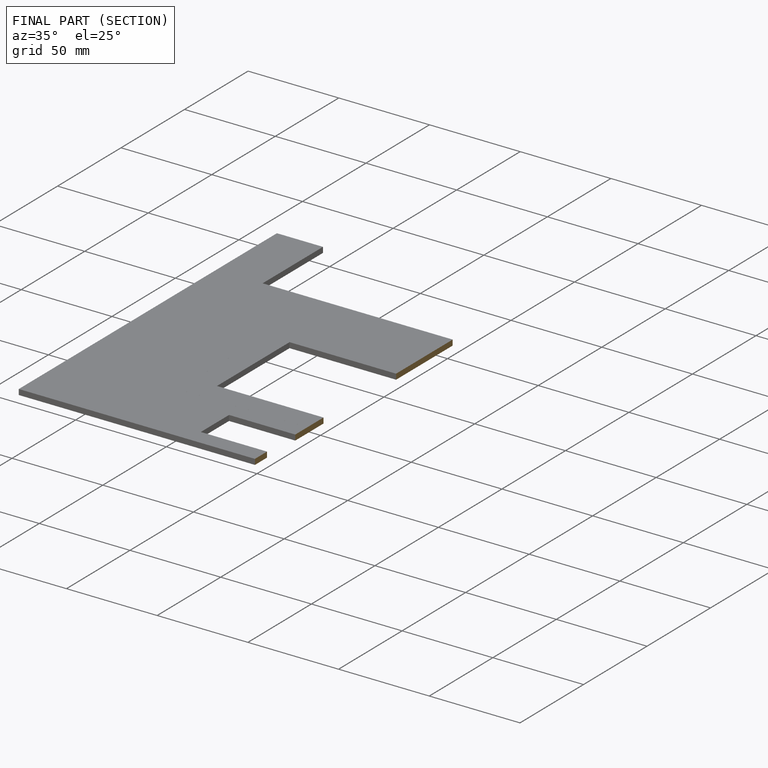
[diagram: finished part — half-section view (interior)]
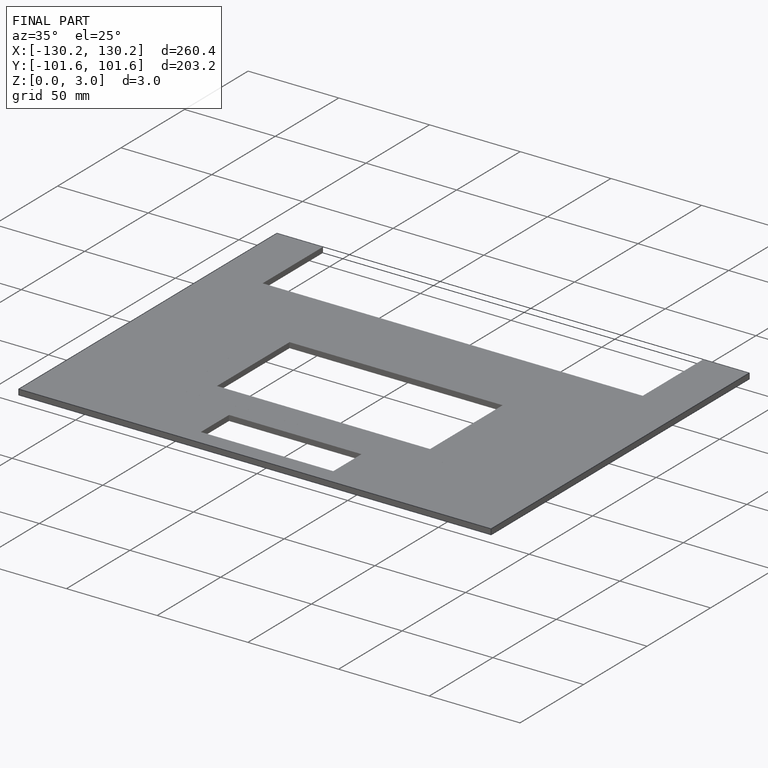
[diagram: finished part — iso view with bounding-box wireframe]
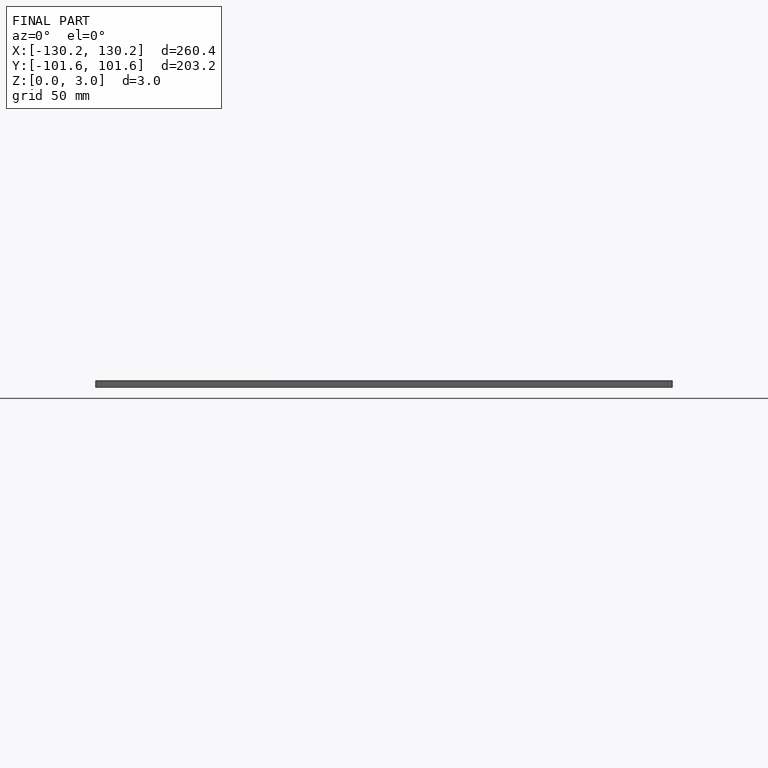
[diagram: finished part — front view with bounding-box wireframe]
